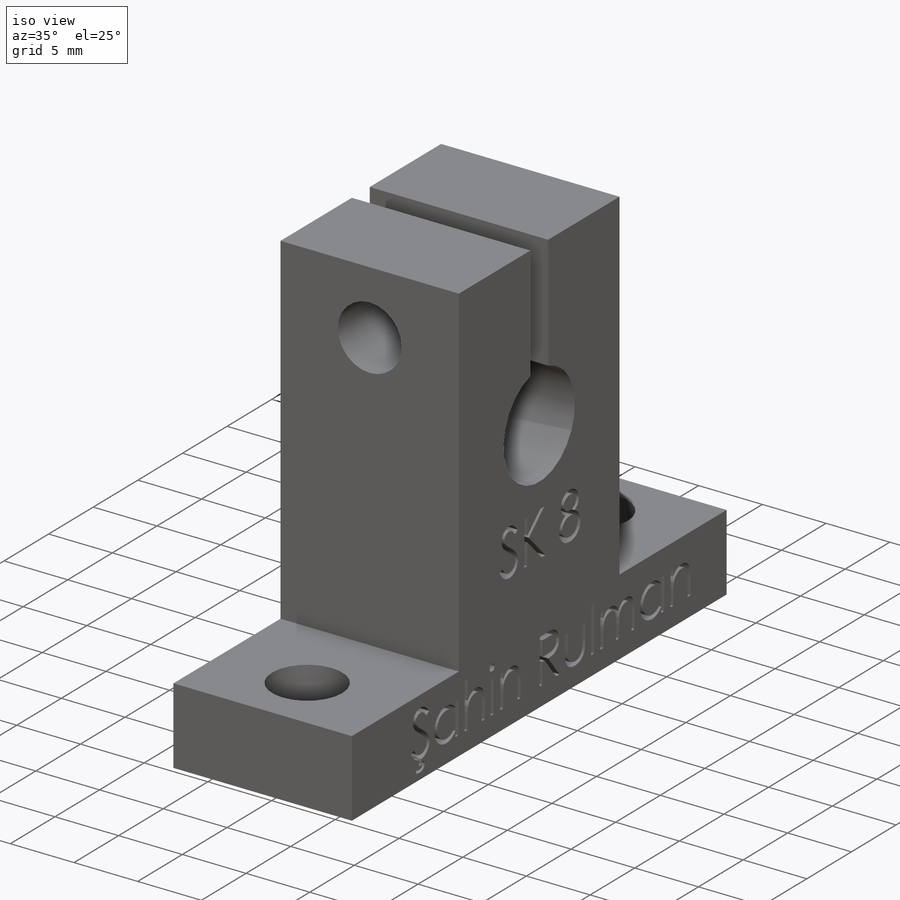
[diagram: iso view]
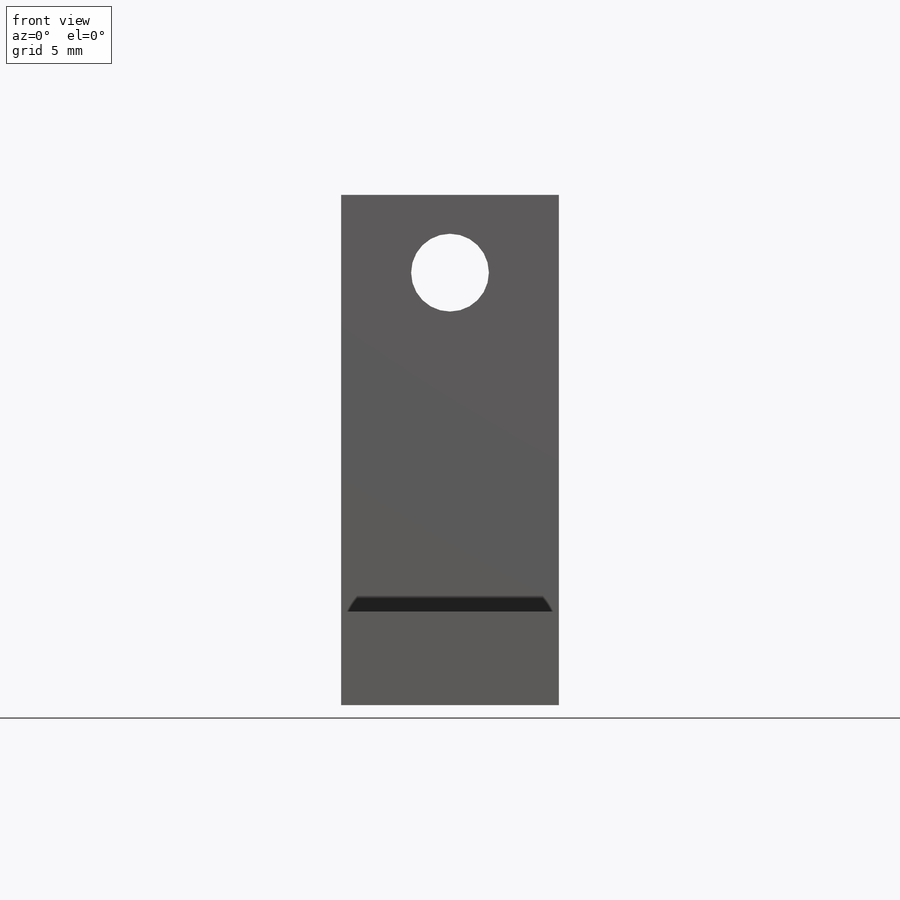
[diagram: front view]
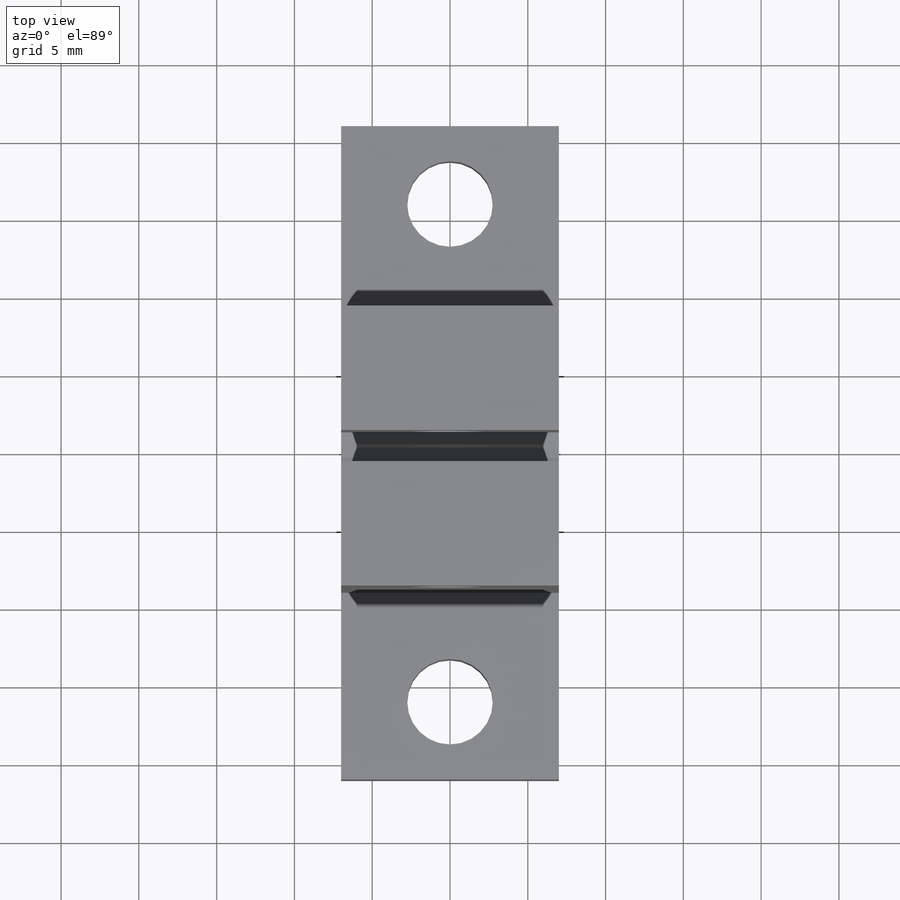
[diagram: top view]
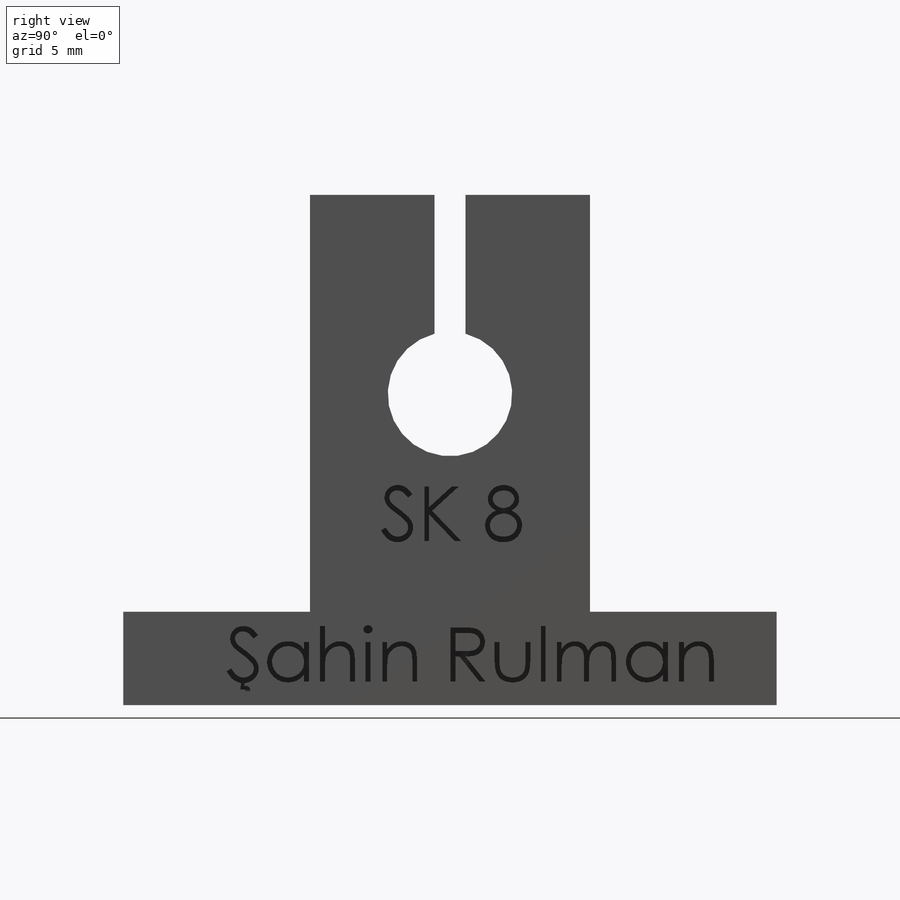
[diagram: right view]
SOLIDWORKS PART (.sldprt)
format: sldprt  version: not decoded by parser v0  size: 515,584 bytes
history: native  units: mm
features: sketch x6, cut_extrude x5, material x1, extrude x1 (+12 scaffold rows collapsed)
feature tree (25):
  scaffold x12  (default folders/planes/origin — collapsed)
  material  "Malzeme <belirli değil>"
  sketch  "Sketch1"  dims[c1.D8=8.0mm c1.D3=8.0mm c1.D1=32.8mm c1.D2=18.0mm c2.D3=9.0mm c2.D4=6.0mm c2.D5=6.0mm c2.D6=~18.778707mm c2.D7=~55.557414mm c3.D6=42.0mm c3.D7=20.0mm c3.D9=21.0mm c3.D3=2.0mm c4.D9=2.0mm c4.D10=2.0mm c4.D7=1.0mm c4.D8=1.0mm]
  extrude  "Boss-Extrude1"  Depth=14mm
  sketch  "Sketch4"  dims[D3=5.5mm D4=5.5mm D1=16.0mm D2=16.0mm]
  cut_extrude  "Cut-Extrude3"  [1 undecoded]
  sketch  "Sketch5"
  cut_extrude  "Cut-Extrude4"  Depth=2mm
  sketch  "Sketch6"  dims[D2=5.0mm D1=5.0mm]
  cut_extrude  "Cut-Extrude6"  [1 undecoded]
  sketch  "Sketch7"  dims[D1=8.0mm]
  cut_extrude  "Cut-Extrude7"  Depth=5mm
  sketch  "Sketch8"
  cut_extrude  "Cut-Extrude8"  Depth=2mm
decode coverage: 8 of 12 modeling features carry decoded parameters
note: ~ marks probable driven/reference dimensions
note: 2 parameter values undecoded
note: suppression state not decoded; provenance and decode notes live in map.json
